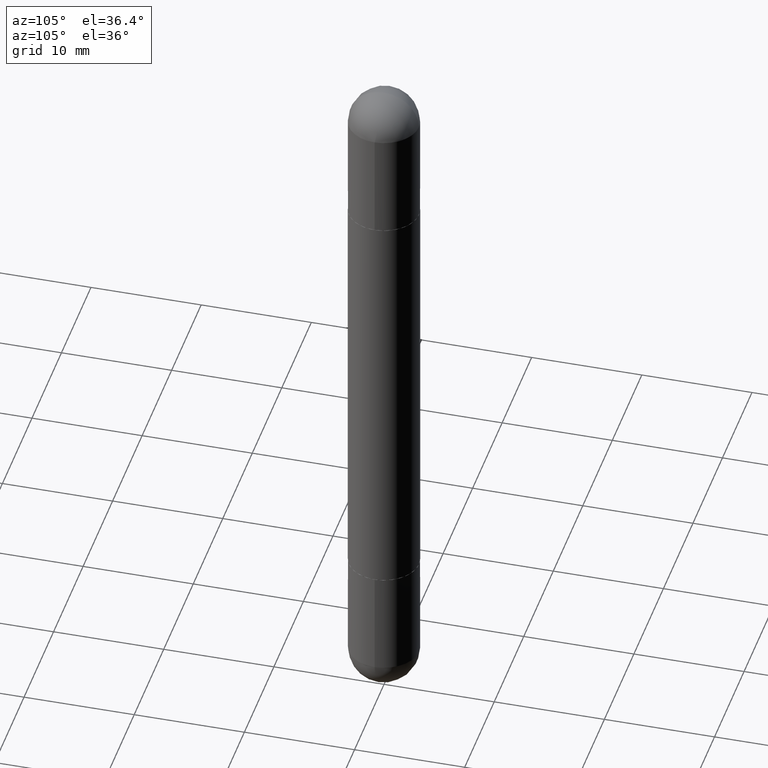
[diagram: clean part render]
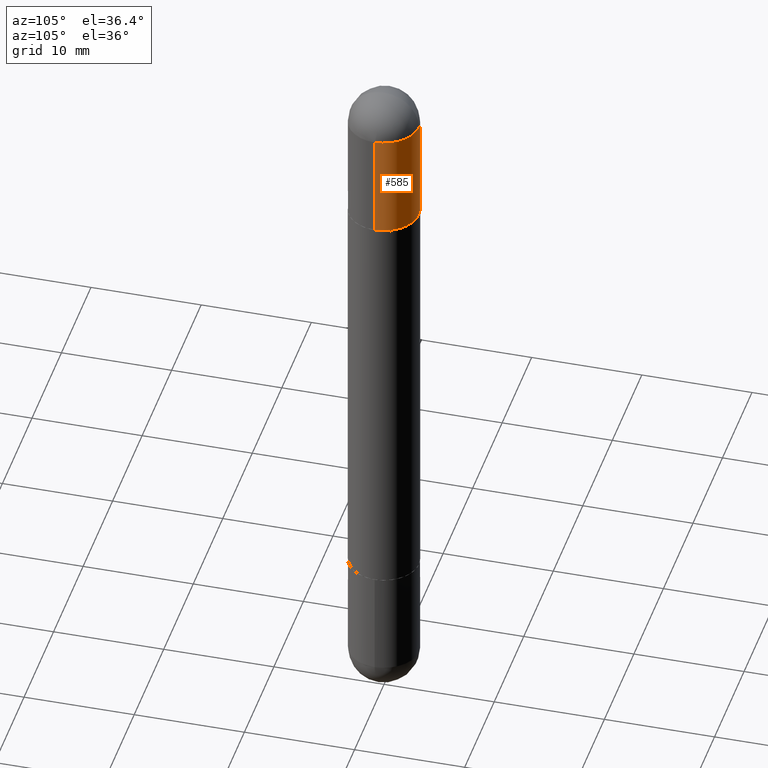
[diagram: same view with one face highlighted and labeled with its STEP entity id]
A machine part, auxiliary view. The second image highlights one B-rep face of the part: STEP entity #585.
In plain terms, the highlighted cylindrical surface (edge-blend (fillet) strip) has radius 3.175 mm, axis along (-0, 0, -1).
Its self-contained STEP definition (entity closure, byte-faithful):
#1 = CARTESIAN_POINT ( 'NONE',  ( 0.1250000000000000000, -8.510485763430165164E-15, -0.1250000000000004441 ) ) ;
#3 = VERTEX_POINT ( 'NONE', #607 ) ;
#11 = CIRCLE ( 'NONE', #537, 0.1250000000000000000 ) ;
#16 = DIRECTION ( 'NONE',  ( 1.000000000000000000, -6.982962677686266711E-15, 0.000000000000000000 ) ) ;
#17 = ORIENTED_EDGE ( 'NONE', *, *, #34, .F. ) ;
#34 = EDGE_CURVE ( 'NONE', #805, #3, #328, .T. ) ;
#72 = CARTESIAN_POINT ( 'NONE',  ( 5.807988414689700538E-29, -8.292268179752471696E-15, -0.1250000000000004441 ) ) ;
#114 = ORIENTED_EDGE ( 'NONE', *, *, #728, .F. ) ;
#124 = DIRECTION ( 'NONE',  ( -2.445468806185136877E-29, 3.491481338843145188E-15, -1.000000000000000000 ) ) ;
#133 = LINE ( 'NONE', #266, #794 ) ;
#135 = FACE_OUTER_BOUND ( 'NONE', #771, .T. ) ;
#159 = CARTESIAN_POINT ( 'NONE',  ( 4.890937612370273194E-29, -6.982962677686291165E-15, -0.5000000000000006661 ) ) ;
#186 = CARTESIAN_POINT ( 'NONE',  ( 0.1250000000000000000, -8.728703347107833388E-16, -2.500000000000000444 ) ) ;
#204 = EDGE_CURVE ( 'NONE', #279, #596, #418, .T. ) ;
#266 = CARTESIAN_POINT ( 'NONE',  ( -0.1250000000000000000, 8.575622497214414453E-16, -2.500000000000000444 ) ) ;
#279 = VERTEX_POINT ( 'NONE', #807 ) ;
#306 = AXIS2_PLACEMENT_3D ( 'NONE', #159, #785, #547 ) ;
#324 = DIRECTION ( 'NONE',  ( 2.445468806185136597E-29, -3.491481338843145583E-15, 1.000000000000000000 ) ) ;
#328 = CIRCLE ( 'NONE', #806, 0.1250000000000000000 ) ;
#358 = DIRECTION ( 'NONE',  ( 2.445468806185136597E-29, -3.491481338843145583E-15, 1.000000000000000000 ) ) ;
#384 = LINE ( 'NONE', #186, #724 ) ;
#391 = DIRECTION ( 'NONE',  ( -2.445468806185136877E-29, 3.491481338843145188E-15, -1.000000000000000000 ) ) ;
#418 = CIRCLE ( 'NONE', #306, 0.1250000000000000000 ) ;
#423 = CARTESIAN_POINT ( 'NONE',  ( 5.807988414689700538E-29, -8.292268179752471696E-15, -0.1250000000000004441 ) ) ;
#434 = ORIENTED_EDGE ( 'NONE', *, *, #204, .T. ) ;
#457 = DIRECTION ( 'NONE',  ( 1.000000000000000000, -6.982962677686270655E-15, 0.000000000000000000 ) ) ;
#465 = CARTESIAN_POINT ( 'NONE',  ( -0.1250000000000000000, -6.780053178997939591E-15, -0.5000000000000006661 ) ) ;
#466 = ORIENTED_EDGE ( 'NONE', *, *, #476, .T. ) ;
#470 = DIRECTION ( 'NONE',  ( 1.000000000000000000, -6.982962677686270655E-15, 0.000000000000000000 ) ) ;
#476 = EDGE_CURVE ( 'NONE', #500, #279, #384, .T. ) ;
#500 = VERTEX_POINT ( 'NONE', #1 ) ;
#527 = CARTESIAN_POINT ( 'NONE',  ( 0.000000000000000000, 0.000000000000000000, -2.500000000000000444 ) ) ;
#537 = AXIS2_PLACEMENT_3D ( 'NONE', #72, #324, #457 ) ;
#547 = DIRECTION ( 'NONE',  ( 1.000000000000000000, -6.982962677686270655E-15, 0.000000000000000000 ) ) ;
#577 = ORIENTED_EDGE ( 'NONE', *, *, #767, .F. ) ;
#585 = ADVANCED_FACE ( 'NONE', ( #135 ), #591, .T. ) ;
#591 = CYLINDRICAL_SURFACE ( 'NONE', #628, 0.1250000000000000000 ) ;
#596 = VERTEX_POINT ( 'NONE', #465 ) ;
#607 = CARTESIAN_POINT ( 'NONE',  ( -0.1250000000000000000, -6.780053178997941168E-15, -0.1250000000000004441 ) ) ;
#628 = AXIS2_PLACEMENT_3D ( 'NONE', #527, #770, #16 ) ;
#724 = VECTOR ( 'NONE', #124, 39.37007874015748143 ) ;
#728 = EDGE_CURVE ( 'NONE', #500, #805, #11, .T. ) ;
#767 = EDGE_CURVE ( 'NONE', #3, #596, #133, .T. ) ;
#770 = DIRECTION ( 'NONE',  ( -2.445468806185136597E-29, 3.491481338843145583E-15, -1.000000000000000000 ) ) ;
#771 = EDGE_LOOP ( 'NONE', ( #577, #17, #114, #466, #434 ) ) ;
#777 = CARTESIAN_POINT ( 'NONE',  ( 8.728703347108403340E-16, 0.1249999999999915623, -0.1250000000000000000 ) ) ;
#785 = DIRECTION ( 'NONE',  ( 2.445468806185136597E-29, -3.491481338843145583E-15, 1.000000000000000000 ) ) ;
#794 = VECTOR ( 'NONE', #391, 39.37007874015748143 ) ;
#805 = VERTEX_POINT ( 'NONE', #777 ) ;
#806 = AXIS2_PLACEMENT_3D ( 'NONE', #423, #358, #470 ) ;
#807 = CARTESIAN_POINT ( 'NONE',  ( 0.1250000000000000000, -7.855833012397075293E-15, -0.5000000000000006661 ) ) ;